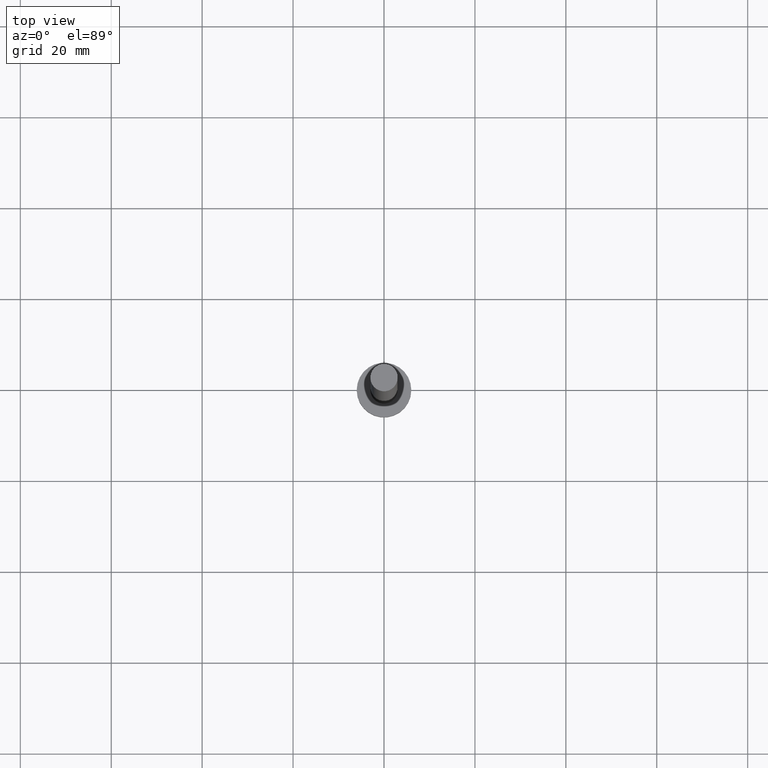
[diagram: clean part render]
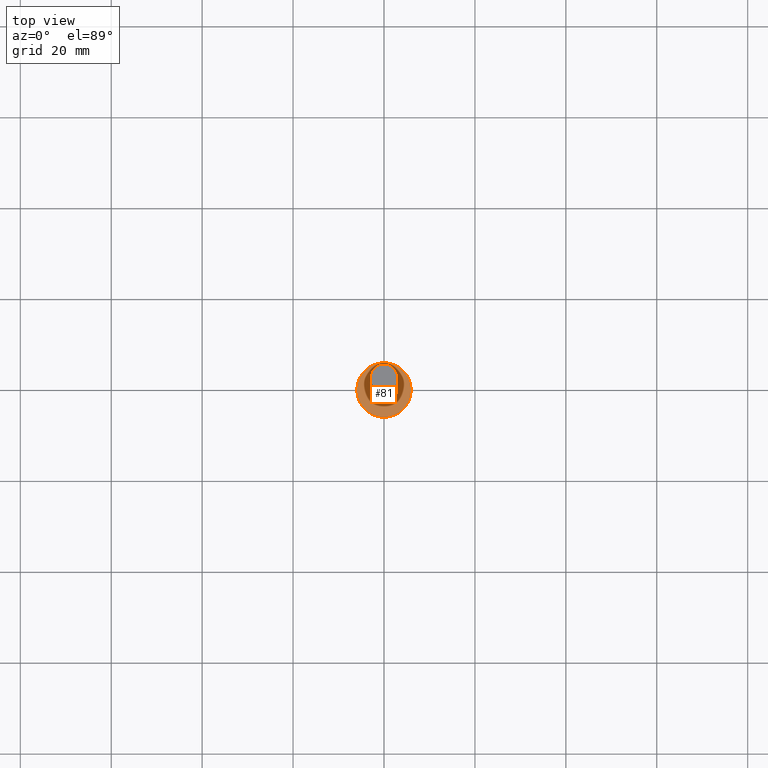
[diagram: same view with one face highlighted and labeled with its STEP entity id]
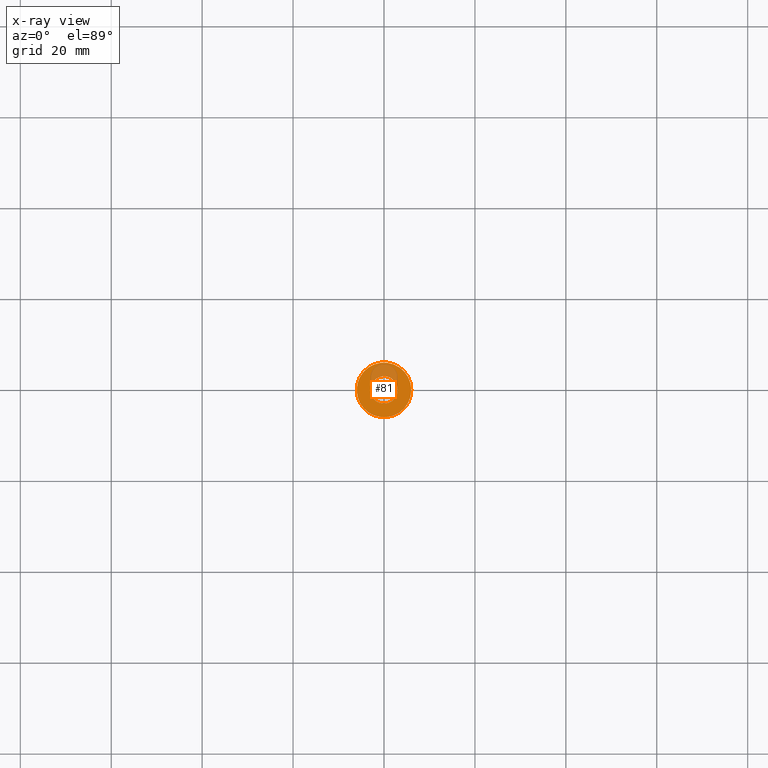
[diagram: x-ray of the same camera — body ghosted, the highlighted face saturated]
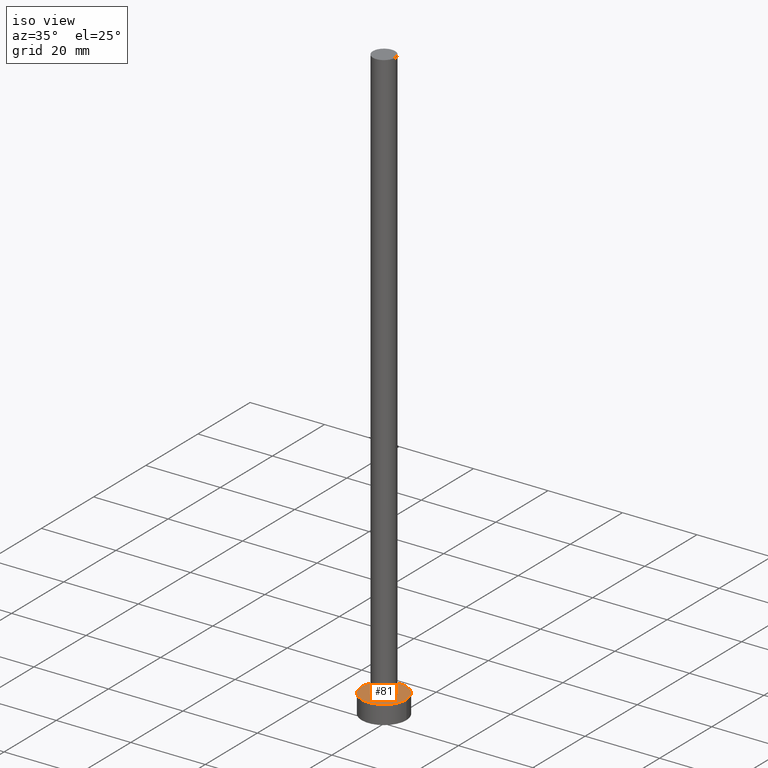
[diagram: same view with one face highlighted and labeled with its STEP entity id]
A machine part, top view. The second image highlights one B-rep face of the part: STEP entity #81.
The next image is the same camera in x-ray: the body ghosted, the highlighted face saturated — about 19% of this face is hidden behind the body in this view.
A second angle (iso view) of the same face is appended — the face is thin or edge-on in the first view.
In plain terms, the highlighted planar face has unit normal (0, 0, 1).
Its self-contained STEP definition (entity closure, byte-faithful):
#2 = FACE_BOUND ( 'NONE', #192, .T. ) ;
#15 = EDGE_LOOP ( 'NONE', ( #132, #34 ) ) ;
#19 = EDGE_CURVE ( 'NONE', #136, #211, #238, .T. ) ;
#20 = CARTESIAN_POINT ( 'NONE',  ( -3.000000000000000444, 0.000000000000000000, 5.000000000000000000 ) ) ;
#34 = ORIENTED_EDGE ( 'NONE', *, *, #19, .T. ) ;
#46 = AXIS2_PLACEMENT_3D ( 'NONE', #142, #99, #102 ) ;
#55 = CIRCLE ( 'NONE', #122, 6.000000000000000888 ) ;
#57 = CARTESIAN_POINT ( 'NONE',  ( 0.000000000000000000, 0.000000000000000000, 5.000000000000000000 ) ) ;
#59 = DIRECTION ( 'NONE',  ( 1.000000000000000000, 0.000000000000000000, 0.000000000000000000 ) ) ;
#75 = VERTEX_POINT ( 'NONE', #157 ) ;
#76 = ORIENTED_EDGE ( 'NONE', *, *, #163, .F. ) ;
#80 = CARTESIAN_POINT ( 'NONE',  ( 6.000000000000000888, 7.347880794884120722E-16, 5.000000000000000000 ) ) ;
#81 = ADVANCED_FACE ( 'NONE', ( #2, #100 ), #199, .T. ) ;
#87 = CARTESIAN_POINT ( 'NONE',  ( 0.000000000000000000, 0.000000000000000000, 5.000000000000000000 ) ) ;
#90 = EDGE_CURVE ( 'NONE', #211, #136, #55, .T. ) ;
#99 = DIRECTION ( 'NONE',  ( 0.000000000000000000, 0.000000000000000000, 1.000000000000000000 ) ) ;
#100 = FACE_OUTER_BOUND ( 'NONE', #15, .T. ) ;
#102 = DIRECTION ( 'NONE',  ( 1.000000000000000000, 0.000000000000000000, 0.000000000000000000 ) ) ;
#105 = AXIS2_PLACEMENT_3D ( 'NONE', #129, #147, #251 ) ;
#117 = CIRCLE ( 'NONE', #105, 3.000000000000000444 ) ;
#122 = AXIS2_PLACEMENT_3D ( 'NONE', #57, #182, #59 ) ;
#129 = CARTESIAN_POINT ( 'NONE',  ( 0.000000000000000000, 0.000000000000000000, 5.000000000000000000 ) ) ;
#132 = ORIENTED_EDGE ( 'NONE', *, *, #90, .T. ) ;
#136 = VERTEX_POINT ( 'NONE', #80 ) ;
#139 = DIRECTION ( 'NONE',  ( 0.000000000000000000, 0.000000000000000000, 1.000000000000000000 ) ) ;
#142 = CARTESIAN_POINT ( 'NONE',  ( 0.000000000000000000, 0.000000000000000000, 5.000000000000000000 ) ) ;
#144 = CARTESIAN_POINT ( 'NONE',  ( 0.000000000000000000, 0.000000000000000000, 5.000000000000000000 ) ) ;
#147 = DIRECTION ( 'NONE',  ( 0.000000000000000000, 0.000000000000000000, 1.000000000000000000 ) ) ;
#157 = CARTESIAN_POINT ( 'NONE',  ( 3.000000000000000444, 3.673940397442060361E-16, 5.000000000000000000 ) ) ;
#160 = CARTESIAN_POINT ( 'NONE',  ( -6.000000000000000888, 0.000000000000000000, 5.000000000000000000 ) ) ;
#163 = EDGE_CURVE ( 'NONE', #75, #209, #217, .T. ) ;
#174 = AXIS2_PLACEMENT_3D ( 'NONE', #144, #139, #241 ) ;
#181 = AXIS2_PLACEMENT_3D ( 'NONE', #87, #235, #222 ) ;
#182 = DIRECTION ( 'NONE',  ( 0.000000000000000000, 0.000000000000000000, 1.000000000000000000 ) ) ;
#192 = EDGE_LOOP ( 'NONE', ( #214, #76 ) ) ;
#199 = PLANE ( 'NONE',  #174 ) ;
#209 = VERTEX_POINT ( 'NONE', #20 ) ;
#211 = VERTEX_POINT ( 'NONE', #160 ) ;
#214 = ORIENTED_EDGE ( 'NONE', *, *, #240, .F. ) ;
#217 = CIRCLE ( 'NONE', #46, 3.000000000000000444 ) ;
#222 = DIRECTION ( 'NONE',  ( 1.000000000000000000, 0.000000000000000000, 0.000000000000000000 ) ) ;
#235 = DIRECTION ( 'NONE',  ( 0.000000000000000000, 0.000000000000000000, 1.000000000000000000 ) ) ;
#238 = CIRCLE ( 'NONE', #181, 6.000000000000000888 ) ;
#240 = EDGE_CURVE ( 'NONE', #209, #75, #117, .T. ) ;
#241 = DIRECTION ( 'NONE',  ( 1.000000000000000000, 0.000000000000000000, -0.000000000000000000 ) ) ;
#251 = DIRECTION ( 'NONE',  ( 1.000000000000000000, 0.000000000000000000, 0.000000000000000000 ) ) ;